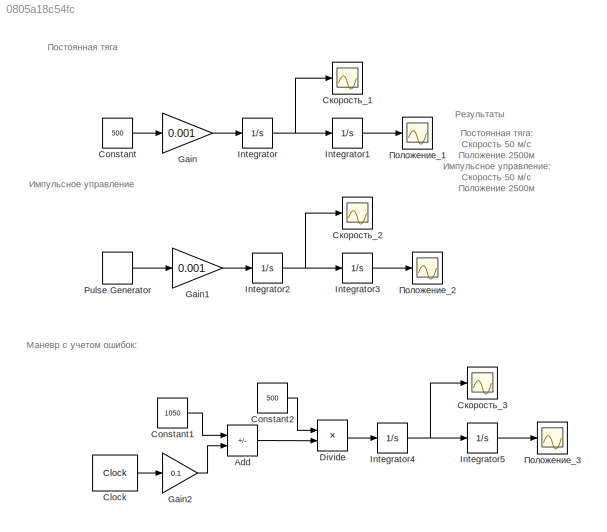
MODEL slx_0805a18c54fc
KIND model
CONFIG AbsTol = auto
CONFIG EnableMultiTasking = off
CONFIG FixedStep = auto
CONFIG MaxStep = auto
CONFIG MinStep = auto
CONFIG RelTol = 1e-3
CONFIG SampleTimeConstraint = Unconstrained
CONFIG SolverName = VariableStepAuto
CONFIG StartTime = 0.0
CONFIG StopTime = 100.0
BLOCK [Sum] Add
  IconShape = rectangular
  Inputs = +-
BLOCK [Clock] Clock
BLOCK [Constant] Constant
  Value = 500
BLOCK [Constant] Constant1
  Value = 1050
BLOCK [Constant] Constant2
  Value = 500
BLOCK [Product] Divide
  Inputs = */
BLOCK [Gain] Gain
  Gain = 0.001
BLOCK [Gain] Gain1
  Gain = 0.001
BLOCK [Gain] Gain2
  Gain = 0.1
BLOCK [Integrator] Integrator
BLOCK [Integrator] Integrator1
BLOCK [Integrator] Integrator2
BLOCK [Integrator] Integrator3
BLOCK [Integrator] Integrator4
BLOCK [Integrator] Integrator5
BLOCK [DiscretePulseGenerator] Pulse Generator
  Amplitude = 500
  Period = 200
  PulseType = Time based
  PulseWidth = 50
BLOCK [Scope] Положение_1
  Floating = off
  NumInputPorts = 1
  ScopeSpecificationString = Simulink.scopes.TimeScopeBlockCfg('CurrentConfiguration', extmgr.ConfigurationSet(extmgr.Configuration('Core','General UI',true),extmgr.Configuration('Core','Source UI',true),extmgr.Configuration('Sources','WiredSimulink',true,'DataLoggingVariableName','ScopeData1'),extmgr.Configuration('Visuals','Time Domain',true,'SerializedDisplays',{struct('MinYLimReal','-312.5','MaxYLimReal','2812.5','YLabelR...<+1453ch>
BLOCK [Scope] Положение_2
  Floating = off
  NumInputPorts = 1
  ScopeSpecificationString = Simulink.scopes.TimeScopeBlockCfg('CurrentConfiguration', extmgr.ConfigurationSet(extmgr.Configuration('Core','General UI',true),extmgr.Configuration('Core','Source UI',true),extmgr.Configuration('Sources','WiredSimulink',true,'DataLoggingVariableName','ScopeData2'),extmgr.Configuration('Visuals','Time Domain',true,'SerializedDisplays',{struct('MinYLimReal','-312.5','MaxYLimReal','2812.5','YLabelR...<+1453ch>
BLOCK [Scope] Положение_3
  Floating = off
  NumInputPorts = 1
  ScopeSpecificationString = Simulink.scopes.TimeScopeBlockCfg('CurrentConfiguration', extmgr.ConfigurationSet(extmgr.Configuration('Core','General UI',true),extmgr.Configuration('Core','Source UI',true),extmgr.Configuration('Sources','WiredSimulink',true,'DataLoggingVariableName','ScopeData4'),extmgr.Configuration('Visuals','Time Domain',true,'SerializedDisplays',{struct('MinYLimReal','-298.5684','MaxYLimReal','2687.11556','...<+1789ch>
BLOCK [Scope] Скорость_1
  Floating = off
  NumInputPorts = 1
  ScopeSpecificationString = Simulink.scopes.TimeScopeBlockCfg('CurrentConfiguration', extmgr.ConfigurationSet(extmgr.Configuration('Core','General UI',true),extmgr.Configuration('Core','Source UI',true),extmgr.Configuration('Sources','WiredSimulink',true),extmgr.Configuration('Visuals','Time Domain',true,'SerializedDisplays',{struct('MinYLimReal','-6.25','MaxYLimReal','56.25','YLabelReal','','MinYLimMag','0.00000','MaxYLimMa...<+1706ch>
BLOCK [Scope] Скорость_2
  Floating = off
  NumInputPorts = 1
  ScopeSpecificationString = Simulink.scopes.TimeScopeBlockCfg('CurrentConfiguration', extmgr.ConfigurationSet(extmgr.Configuration('Core','General UI',true),extmgr.Configuration('Core','Source UI',true),extmgr.Configuration('Sources','WiredSimulink',true,'DataLoggingVariableName','ScopeData3'),extmgr.Configuration('Visuals','Time Domain',true,'SerializedDisplays',{struct('MinYLimReal','-0.0625','MaxYLimReal','0.5625','YLabel...<+1452ch>
BLOCK [Scope] Скорость_3
  Floating = off
  NumInputPorts = 1
  ScopeSpecificationString = Simulink.scopes.TimeScopeBlockCfg('CurrentConfiguration', extmgr.ConfigurationSet(extmgr.Configuration('Core','General UI',true),extmgr.Configuration('Core','Source UI',true),extmgr.Configuration('Sources','WiredSimulink',true,'DataLoggingVariableName','ScopeData5'),extmgr.Configuration('Visuals','Time Domain',true,'SerializedDisplays',{struct('MinYLimReal','-5.98091','MaxYLimReal','53.82816','YLa...<+1724ch>
ANNOTATION (root): Постоянная тяга: Скорость 50 м/c Положение 2500м Импульсное управление: Скорость 50 м/c Положение 2500м Маневр с учетом ошибок: Скорость 47.85 м/c Положение 2389м Ошибки: Скорость 2.15 м/c 4.3% Положение 111м 4.44%
ANNOTATION (root): Импульсное управление
ANNOTATION (root): Маневр с учетом ошибок:
ANNOTATION (root): Постоянная тяга
ANNOTATION (root): Результаты
LINE Add:1 -> Divide:2
LINE Clock:1 -> Gain2:1
LINE Constant1:1 -> Add:1
LINE Constant2:1 -> Divide:1
LINE Constant:1 -> Gain:1
LINE Divide:1 -> Integrator4:1
LINE Gain1:1 -> Integrator2:1
LINE Gain2:1 -> Add:2
LINE Gain:1 -> Integrator:1
LINE Integrator1:1 -> Положение_1:1
NET Integrator2:1 -> Integrator3:1, Скорость_2:1
LINE Integrator3:1 -> Положение_2:1
NET Integrator4:1 -> Integrator5:1, Скорость_3:1
LINE Integrator5:1 -> Положение_3:1
NET Integrator:1 -> Integrator1:1, Скорость_1:1
LINE Pulse Generator:1 -> Gain1:1
note: NET lines group one-source signal fan-out (src -> all destinations, sorted); 1:1 wires keep LINE
